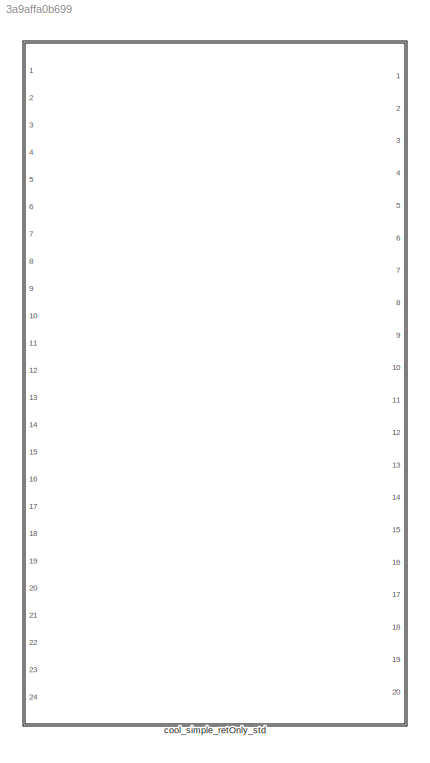
MODEL slx_3a9affa0b699
KIND library
CONFIG AbsTol = auto
CONFIG FixedStep = auto
CONFIG MaxStep = auto
CONFIG MinStep = auto
CONFIG RelTol = 1e-3
CONFIG SampleTimeConstraint = Unconstrained
CONFIG Solver = VariableStepAuto
CONFIG SolverMode = Auto
CONFIG SolverName = VariableStepAuto
CONFIG StartTime = 0.0
CONFIG StopTime = 10.0
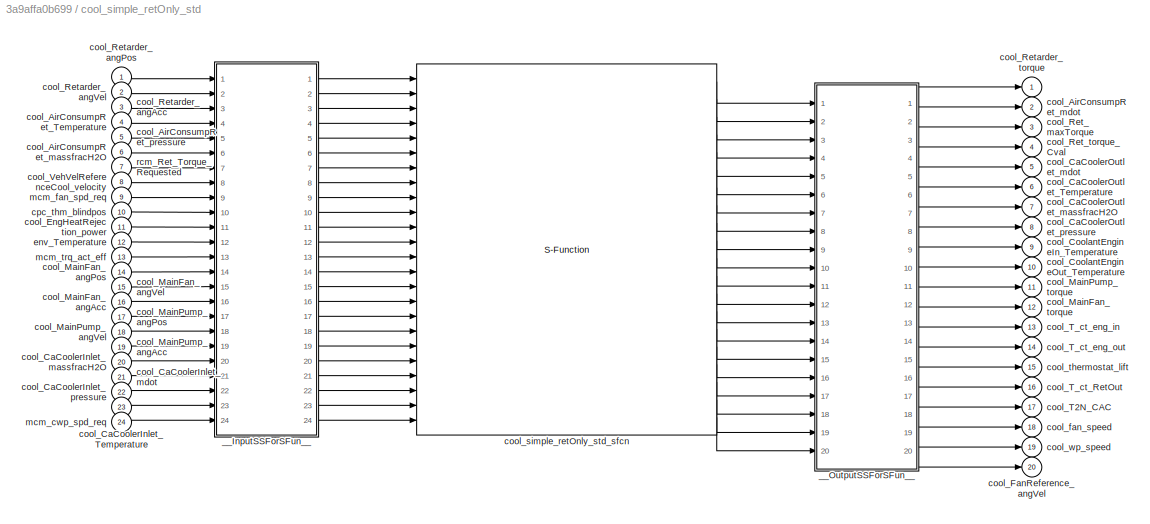
BLOCK [SubSystem] cool_simple_retOnly_std
  Ports = [24, 20]
  RequestExecContextInheritance = off
  Variant = off
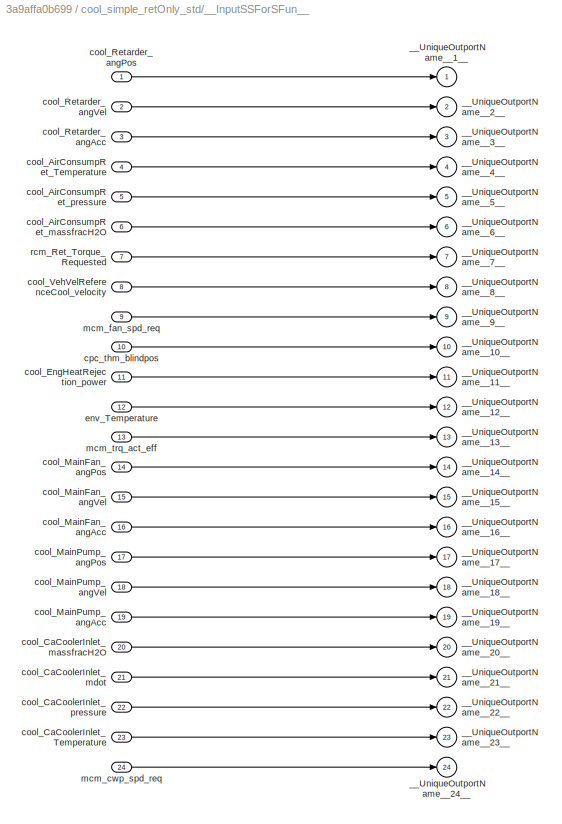
BLOCK [SubSystem] cool_simple_retOnly_std/__InputSSForSFun__
  PermitHierarchicalResolution = ExplicitOnly
  Ports = [24, 24]
  RequestExecContextInheritance = off
  Variant = off
BLOCK [Outport] cool_simple_retOnly_std/__InputSSForSFun__/__UniqueOutportName__10__
  IconDisplay = Port number
  Port = 10
BLOCK [Outport] cool_simple_retOnly_std/__InputSSForSFun__/__UniqueOutportName__11__
  IconDisplay = Port number
  Port = 11
BLOCK [Outport] cool_simple_retOnly_std/__InputSSForSFun__/__UniqueOutportName__12__
  IconDisplay = Port number
  Port = 12
BLOCK [Outport] cool_simple_retOnly_std/__InputSSForSFun__/__UniqueOutportName__13__
  IconDisplay = Port number
  Port = 13
BLOCK [Outport] cool_simple_retOnly_std/__InputSSForSFun__/__UniqueOutportName__14__
  IconDisplay = Port number
  Port = 14
BLOCK [Outport] cool_simple_retOnly_std/__InputSSForSFun__/__UniqueOutportName__15__
  IconDisplay = Port number
  Port = 15
BLOCK [Outport] cool_simple_retOnly_std/__InputSSForSFun__/__UniqueOutportName__16__
  IconDisplay = Port number
  Port = 16
BLOCK [Outport] cool_simple_retOnly_std/__InputSSForSFun__/__UniqueOutportName__17__
  IconDisplay = Port number
  Port = 17
BLOCK [Outport] cool_simple_retOnly_std/__InputSSForSFun__/__UniqueOutportName__18__
  IconDisplay = Port number
  Port = 18
BLOCK [Outport] cool_simple_retOnly_std/__InputSSForSFun__/__UniqueOutportName__19__
  IconDisplay = Port number
  Port = 19
BLOCK [Outport] cool_simple_retOnly_std/__InputSSForSFun__/__UniqueOutportName__1__
  IconDisplay = Port number
BLOCK [Outport] cool_simple_retOnly_std/__InputSSForSFun__/__UniqueOutportName__20__
  IconDisplay = Port number
  Port = 20
BLOCK [Outport] cool_simple_retOnly_std/__InputSSForSFun__/__UniqueOutportName__21__
  IconDisplay = Port number
  Port = 21
BLOCK [Outport] cool_simple_retOnly_std/__InputSSForSFun__/__UniqueOutportName__22__
  IconDisplay = Port number
  Port = 22
BLOCK [Outport] cool_simple_retOnly_std/__InputSSForSFun__/__UniqueOutportName__23__
  IconDisplay = Port number
  Port = 23
BLOCK [Outport] cool_simple_retOnly_std/__InputSSForSFun__/__UniqueOutportName__24__
  IconDisplay = Port number
  Port = 24
BLOCK [Outport] cool_simple_retOnly_std/__InputSSForSFun__/__UniqueOutportName__2__
  IconDisplay = Port number
  Port = 2
BLOCK [Outport] cool_simple_retOnly_std/__InputSSForSFun__/__UniqueOutportName__3__
  IconDisplay = Port number
  Port = 3
BLOCK [Outport] cool_simple_retOnly_std/__InputSSForSFun__/__UniqueOutportName__4__
  IconDisplay = Port number
  Port = 4
BLOCK [Outport] cool_simple_retOnly_std/__InputSSForSFun__/__UniqueOutportName__5__
  IconDisplay = Port number
  Port = 5
BLOCK [Outport] cool_simple_retOnly_std/__InputSSForSFun__/__UniqueOutportName__6__
  IconDisplay = Port number
  Port = 6
BLOCK [Outport] cool_simple_retOnly_std/__InputSSForSFun__/__UniqueOutportName__7__
  IconDisplay = Port number
  Port = 7
BLOCK [Outport] cool_simple_retOnly_std/__InputSSForSFun__/__UniqueOutportName__8__
  IconDisplay = Port number
  Port = 8
BLOCK [Outport] cool_simple_retOnly_std/__InputSSForSFun__/__UniqueOutportName__9__
  IconDisplay = Port number
  Port = 9
BLOCK [Inport] cool_simple_retOnly_std/__InputSSForSFun__/cool_AirConsumpRet_Temperature
  IconDisplay = Port number
  Port = 4
BLOCK [Inport] cool_simple_retOnly_std/__InputSSForSFun__/cool_AirConsumpRet_massfracH2O
  IconDisplay = Port number
  Port = 6
BLOCK [Inport] cool_simple_retOnly_std/__InputSSForSFun__/cool_AirConsumpRet_pressure
  IconDisplay = Port number
  Port = 5
BLOCK [Inport] cool_simple_retOnly_std/__InputSSForSFun__/cool_CaCoolerInlet_Temperature
  IconDisplay = Port number
  Port = 23
BLOCK [Inport] cool_simple_retOnly_std/__InputSSForSFun__/cool_CaCoolerInlet_massfracH2O
  IconDisplay = Port number
  Port = 20
BLOCK [Inport] cool_simple_retOnly_std/__InputSSForSFun__/cool_CaCoolerInlet_mdot
  IconDisplay = Port number
  Port = 21
BLOCK [Inport] cool_simple_retOnly_std/__InputSSForSFun__/cool_CaCoolerInlet_pressure
  IconDisplay = Port number
  Port = 22
BLOCK [Inport] cool_simple_retOnly_std/__InputSSForSFun__/cool_EngHeatRejection_power
  IconDisplay = Port number
  Port = 11
BLOCK [Inport] cool_simple_retOnly_std/__InputSSForSFun__/cool_MainFan_angAcc
  IconDisplay = Port number
  Port = 16
BLOCK [Inport] cool_simple_retOnly_std/__InputSSForSFun__/cool_MainFan_angPos
  IconDisplay = Port number
  Port = 14
BLOCK [Inport] cool_simple_retOnly_std/__InputSSForSFun__/cool_MainFan_angVel
  IconDisplay = Port number
  Port = 15
BLOCK [Inport] cool_simple_retOnly_std/__InputSSForSFun__/cool_MainPump_angAcc
  IconDisplay = Port number
  Port = 19
BLOCK [Inport] cool_simple_retOnly_std/__InputSSForSFun__/cool_MainPump_angPos
  IconDisplay = Port number
  Port = 17
BLOCK [Inport] cool_simple_retOnly_std/__InputSSForSFun__/cool_MainPump_angVel
  IconDisplay = Port number
  Port = 18
BLOCK [Inport] cool_simple_retOnly_std/__InputSSForSFun__/cool_Retarder_angAcc
  IconDisplay = Port number
  Port = 3
BLOCK [Inport] cool_simple_retOnly_std/__InputSSForSFun__/cool_Retarder_angPos
  IconDisplay = Port number
BLOCK [Inport] cool_simple_retOnly_std/__InputSSForSFun__/cool_Retarder_angVel
  IconDisplay = Port number
  Port = 2
BLOCK [Inport] cool_simple_retOnly_std/__InputSSForSFun__/cool_VehVelReferenceCool_velocity
  IconDisplay = Port number
  Port = 8
BLOCK [Inport] cool_simple_retOnly_std/__InputSSForSFun__/cpc_thm_blindpos
  IconDisplay = Port number
  Port = 10
BLOCK [Inport] cool_simple_retOnly_std/__InputSSForSFun__/env_Temperature
  IconDisplay = Port number
  Port = 12
BLOCK [Inport] cool_simple_retOnly_std/__InputSSForSFun__/mcm_cwp_spd_req
  IconDisplay = Port number
  Port = 24
BLOCK [Inport] cool_simple_retOnly_std/__InputSSForSFun__/mcm_fan_spd_req
  IconDisplay = Port number
  Port = 9
BLOCK [Inport] cool_simple_retOnly_std/__InputSSForSFun__/mcm_trq_act_eff
  IconDisplay = Port number
  Port = 13
BLOCK [Inport] cool_simple_retOnly_std/__InputSSForSFun__/rcm_Ret_Torque_Requested
  IconDisplay = Port number
  Port = 7
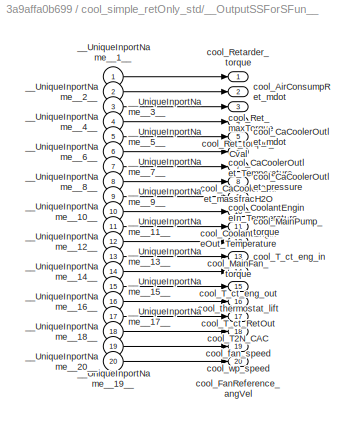
BLOCK [SubSystem] cool_simple_retOnly_std/__OutputSSForSFun__
  PermitHierarchicalResolution = ExplicitOnly
  Ports = [20, 20]
  RequestExecContextInheritance = off
  Variant = off
BLOCK [Inport] cool_simple_retOnly_std/__OutputSSForSFun__/__UniqueInportName__10__
  IconDisplay = Port number
  Port = 10
BLOCK [Inport] cool_simple_retOnly_std/__OutputSSForSFun__/__UniqueInportName__11__
  IconDisplay = Port number
  Port = 11
BLOCK [Inport] cool_simple_retOnly_std/__OutputSSForSFun__/__UniqueInportName__12__
  IconDisplay = Port number
  Port = 12
BLOCK [Inport] cool_simple_retOnly_std/__OutputSSForSFun__/__UniqueInportName__13__
  IconDisplay = Port number
  Port = 13
BLOCK [Inport] cool_simple_retOnly_std/__OutputSSForSFun__/__UniqueInportName__14__
  IconDisplay = Port number
  Port = 14
BLOCK [Inport] cool_simple_retOnly_std/__OutputSSForSFun__/__UniqueInportName__15__
  IconDisplay = Port number
  Port = 15
BLOCK [Inport] cool_simple_retOnly_std/__OutputSSForSFun__/__UniqueInportName__16__
  IconDisplay = Port number
  Port = 16
BLOCK [Inport] cool_simple_retOnly_std/__OutputSSForSFun__/__UniqueInportName__17__
  IconDisplay = Port number
  Port = 17
BLOCK [Inport] cool_simple_retOnly_std/__OutputSSForSFun__/__UniqueInportName__18__
  IconDisplay = Port number
  Port = 18
BLOCK [Inport] cool_simple_retOnly_std/__OutputSSForSFun__/__UniqueInportName__19__
  IconDisplay = Port number
  Port = 19
BLOCK [Inport] cool_simple_retOnly_std/__OutputSSForSFun__/__UniqueInportName__1__
  IconDisplay = Port number
BLOCK [Inport] cool_simple_retOnly_std/__OutputSSForSFun__/__UniqueInportName__20__
  IconDisplay = Port number
  Port = 20
BLOCK [Inport] cool_simple_retOnly_std/__OutputSSForSFun__/__UniqueInportName__2__
  IconDisplay = Port number
  Port = 2
BLOCK [Inport] cool_simple_retOnly_std/__OutputSSForSFun__/__UniqueInportName__3__
  IconDisplay = Port number
  Port = 3
BLOCK [Inport] cool_simple_retOnly_std/__OutputSSForSFun__/__UniqueInportName__4__
  IconDisplay = Port number
  Port = 4
BLOCK [Inport] cool_simple_retOnly_std/__OutputSSForSFun__/__UniqueInportName__5__
  IconDisplay = Port number
  Port = 5
BLOCK [Inport] cool_simple_retOnly_std/__OutputSSForSFun__/__UniqueInportName__6__
  IconDisplay = Port number
  Port = 6
BLOCK [Inport] cool_simple_retOnly_std/__OutputSSForSFun__/__UniqueInportName__7__
  IconDisplay = Port number
  Port = 7
BLOCK [Inport] cool_simple_retOnly_std/__OutputSSForSFun__/__UniqueInportName__8__
  IconDisplay = Port number
  Port = 8
BLOCK [Inport] cool_simple_retOnly_std/__OutputSSForSFun__/__UniqueInportName__9__
  IconDisplay = Port number
  Port = 9
BLOCK [Outport] cool_simple_retOnly_std/__OutputSSForSFun__/cool_AirConsumpRet_mdot
  IconDisplay = Port number
  Port = 2
BLOCK [Outport] cool_simple_retOnly_std/__OutputSSForSFun__/cool_CaCoolerOutlet_Temperature
  IconDisplay = Port number
  Port = 6
BLOCK [Outport] cool_simple_retOnly_std/__OutputSSForSFun__/cool_CaCoolerOutlet_massfracH2O
  IconDisplay = Port number
  Port = 7
BLOCK [Outport] cool_simple_retOnly_std/__OutputSSForSFun__/cool_CaCoolerOutlet_mdot
  IconDisplay = Port number
  Port = 5
BLOCK [Outport] cool_simple_retOnly_std/__OutputSSForSFun__/cool_CaCoolerOutlet_pressure
  IconDisplay = Port number
  Port = 8
BLOCK [Outport] cool_simple_retOnly_std/__OutputSSForSFun__/cool_CoolantEngineIn_Temperature
  IconDisplay = Port number
  Port = 9
BLOCK [Outport] cool_simple_retOnly_std/__OutputSSForSFun__/cool_CoolantEngineOut_Temperature
  IconDisplay = Port number
  Port = 10
BLOCK [Outport] cool_simple_retOnly_std/__OutputSSForSFun__/cool_FanReference_angVel
  IconDisplay = Port number
  Port = 20
BLOCK [Outport] cool_simple_retOnly_std/__OutputSSForSFun__/cool_MainFan_torque
  IconDisplay = Port number
  Port = 12
BLOCK [Outport] cool_simple_retOnly_std/__OutputSSForSFun__/cool_MainPump_torque
  IconDisplay = Port number
  Port = 11
BLOCK [Outport] cool_simple_retOnly_std/__OutputSSForSFun__/cool_Ret_maxTorque
  IconDisplay = Port number
  Port = 3
BLOCK [Outport] cool_simple_retOnly_std/__OutputSSForSFun__/cool_Ret_torque_Cval
  IconDisplay = Port number
  Port = 4
BLOCK [Outport] cool_simple_retOnly_std/__OutputSSForSFun__/cool_Retarder_torque
  IconDisplay = Port number
BLOCK [Outport] cool_simple_retOnly_std/__OutputSSForSFun__/cool_T2N_CAC
  IconDisplay = Port number
  Port = 17
BLOCK [Outport] cool_simple_retOnly_std/__OutputSSForSFun__/cool_T_ct_RetOut
  IconDisplay = Port number
  Port = 16
BLOCK [Outport] cool_simple_retOnly_std/__OutputSSForSFun__/cool_T_ct_eng_in
  IconDisplay = Port number
  Port = 13
BLOCK [Outport] cool_simple_retOnly_std/__OutputSSForSFun__/cool_T_ct_eng_out
  IconDisplay = Port number
  Port = 14
BLOCK [Outport] cool_simple_retOnly_std/__OutputSSForSFun__/cool_fan_speed
  IconDisplay = Port number
  Port = 18
BLOCK [Outport] cool_simple_retOnly_std/__OutputSSForSFun__/cool_thermostat_lift
  IconDisplay = Port number
  Port = 15
BLOCK [Outport] cool_simple_retOnly_std/__OutputSSForSFun__/cool_wp_speed
  IconDisplay = Port number
  Port = 19
BLOCK [Inport] cool_simple_retOnly_std/cool_AirConsumpRet_Temperature
  IconDisplay = Port number
  Port = 4
BLOCK [Inport] cool_simple_retOnly_std/cool_AirConsumpRet_massfracH2O
  IconDisplay = Port number
  Port = 6
BLOCK [Outport] cool_simple_retOnly_std/cool_AirConsumpRet_mdot
  IconDisplay = Port number
  Port = 2
BLOCK [Inport] cool_simple_retOnly_std/cool_AirConsumpRet_pressure
  IconDisplay = Port number
  Port = 5
BLOCK [Inport] cool_simple_retOnly_std/cool_CaCoolerInlet_Temperature
  IconDisplay = Port number
  Port = 23
BLOCK [Inport] cool_simple_retOnly_std/cool_CaCoolerInlet_massfracH2O
  IconDisplay = Port number
  Port = 20
BLOCK [Inport] cool_simple_retOnly_std/cool_CaCoolerInlet_mdot
  IconDisplay = Port number
  Port = 21
BLOCK [Inport] cool_simple_retOnly_std/cool_CaCoolerInlet_pressure
  IconDisplay = Port number
  Port = 22
BLOCK [Outport] cool_simple_retOnly_std/cool_CaCoolerOutlet_Temperature
  IconDisplay = Port number
  Port = 6
BLOCK [Outport] cool_simple_retOnly_std/cool_CaCoolerOutlet_massfracH2O
  IconDisplay = Port number
  Port = 7
BLOCK [Outport] cool_simple_retOnly_std/cool_CaCoolerOutlet_mdot
  IconDisplay = Port number
  Port = 5
BLOCK [Outport] cool_simple_retOnly_std/cool_CaCoolerOutlet_pressure
  IconDisplay = Port number
  Port = 8
BLOCK [Outport] cool_simple_retOnly_std/cool_CoolantEngineIn_Temperature
  IconDisplay = Port number
  Port = 9
BLOCK [Outport] cool_simple_retOnly_std/cool_CoolantEngineOut_Temperature
  IconDisplay = Port number
  Port = 10
BLOCK [Inport] cool_simple_retOnly_std/cool_EngHeatRejection_power
  IconDisplay = Port number
  Port = 11
BLOCK [Outport] cool_simple_retOnly_std/cool_FanReference_angVel
  IconDisplay = Port number
  Port = 20
BLOCK [Inport] cool_simple_retOnly_std/cool_MainFan_angAcc
  IconDisplay = Port number
  Port = 16
BLOCK [Inport] cool_simple_retOnly_std/cool_MainFan_angPos
  IconDisplay = Port number
  Port = 14
BLOCK [Inport] cool_simple_retOnly_std/cool_MainFan_angVel
  IconDisplay = Port number
  Port = 15
BLOCK [Outport] cool_simple_retOnly_std/cool_MainFan_torque
  IconDisplay = Port number
  Port = 12
BLOCK [Inport] cool_simple_retOnly_std/cool_MainPump_angAcc
  IconDisplay = Port number
  Port = 19
BLOCK [Inport] cool_simple_retOnly_std/cool_MainPump_angPos
  IconDisplay = Port number
  Port = 17
BLOCK [Inport] cool_simple_retOnly_std/cool_MainPump_angVel
  IconDisplay = Port number
  Port = 18
BLOCK [Outport] cool_simple_retOnly_std/cool_MainPump_torque
  IconDisplay = Port number
  Port = 11
BLOCK [Outport] cool_simple_retOnly_std/cool_Ret_maxTorque
  IconDisplay = Port number
  Port = 3
BLOCK [Outport] cool_simple_retOnly_std/cool_Ret_torque_Cval
  IconDisplay = Port number
  Port = 4
BLOCK [Inport] cool_simple_retOnly_std/cool_Retarder_angAcc
  IconDisplay = Port number
  Port = 3
BLOCK [Inport] cool_simple_retOnly_std/cool_Retarder_angPos
  IconDisplay = Port number
BLOCK [Inport] cool_simple_retOnly_std/cool_Retarder_angVel
  IconDisplay = Port number
  Port = 2
BLOCK [Outport] cool_simple_retOnly_std/cool_Retarder_torque
  IconDisplay = Port number
BLOCK [Outport] cool_simple_retOnly_std/cool_T2N_CAC
  IconDisplay = Port number
  Port = 17
BLOCK [Outport] cool_simple_retOnly_std/cool_T_ct_RetOut
  IconDisplay = Port number
  Port = 16
BLOCK [Outport] cool_simple_retOnly_std/cool_T_ct_eng_in
  IconDisplay = Port number
  Port = 13
BLOCK [Outport] cool_simple_retOnly_std/cool_T_ct_eng_out
  IconDisplay = Port number
  Port = 14
BLOCK [Inport] cool_simple_retOnly_std/cool_VehVelReferenceCool_velocity
  IconDisplay = Port number
  Port = 8
BLOCK [Outport] cool_simple_retOnly_std/cool_fan_speed
  IconDisplay = Port number
  Port = 18
BLOCK [S-Function] cool_simple_retOnly_std/cool_simple_retOnly_std_sfcn
  CopyFcn = if ~strcmp(get_param(gcb,'Linkstatus'),'none') && ...\n~strcmp(get_param(gcb,'Linkstatus'),'implicit')      \n  set_param(gcb,'LinkStatus','none');                \nend
  EnableBusSupport = off
  FunctionName = cool_simple_retOnly_std0_sf
  Parameters = sfcnParam1, sfcnParam2, sfcnParam3, sfcnParam4, sfcnParam5, sfcnParam6, sfcnParam7, sfcnParam8, sfcnParam9, sfcnParam10, sfcnParam11, sfcnParam12, sfcnParam13
  Ports = [24, 20]
  SFunctionDeploymentMode = off
BLOCK [Outport] cool_simple_retOnly_std/cool_thermostat_lift
  IconDisplay = Port number
  Port = 15
BLOCK [Outport] cool_simple_retOnly_std/cool_wp_speed
  IconDisplay = Port number
  Port = 19
BLOCK [Inport] cool_simple_retOnly_std/cpc_thm_blindpos
  IconDisplay = Port number
  Port = 10
BLOCK [Inport] cool_simple_retOnly_std/env_Temperature
  IconDisplay = Port number
  Port = 12
BLOCK [Inport] cool_simple_retOnly_std/mcm_cwp_spd_req
  IconDisplay = Port number
  Port = 24
BLOCK [Inport] cool_simple_retOnly_std/mcm_fan_spd_req
  IconDisplay = Port number
  Port = 9
BLOCK [Inport] cool_simple_retOnly_std/mcm_trq_act_eff
  IconDisplay = Port number
  Port = 13
BLOCK [Inport] cool_simple_retOnly_std/rcm_Ret_Torque_Requested
  IconDisplay = Port number
  Port = 7
LINE cool_simple_retOnly_std/__InputSSForSFun__/cool_AirConsumpRet_Temperature:1 -> cool_simple_retOnly_std/__InputSSForSFun__/__UniqueOutportName__4__:1
LINE cool_simple_retOnly_std/__InputSSForSFun__/cool_AirConsumpRet_massfracH2O:1 -> cool_simple_retOnly_std/__InputSSForSFun__/__UniqueOutportName__6__:1
LINE cool_simple_retOnly_std/__InputSSForSFun__/cool_AirConsumpRet_pressure:1 -> cool_simple_retOnly_std/__InputSSForSFun__/__UniqueOutportName__5__:1
LINE cool_simple_retOnly_std/__InputSSForSFun__/cool_CaCoolerInlet_Temperature:1 -> cool_simple_retOnly_std/__InputSSForSFun__/__UniqueOutportName__23__:1
LINE cool_simple_retOnly_std/__InputSSForSFun__/cool_CaCoolerInlet_massfracH2O:1 -> cool_simple_retOnly_std/__InputSSForSFun__/__UniqueOutportName__20__:1
LINE cool_simple_retOnly_std/__InputSSForSFun__/cool_CaCoolerInlet_mdot:1 -> cool_simple_retOnly_std/__InputSSForSFun__/__UniqueOutportName__21__:1
LINE cool_simple_retOnly_std/__InputSSForSFun__/cool_CaCoolerInlet_pressure:1 -> cool_simple_retOnly_std/__InputSSForSFun__/__UniqueOutportName__22__:1
LINE cool_simple_retOnly_std/__InputSSForSFun__/cool_EngHeatRejection_power:1 -> cool_simple_retOnly_std/__InputSSForSFun__/__UniqueOutportName__11__:1
LINE cool_simple_retOnly_std/__InputSSForSFun__/cool_MainFan_angAcc:1 -> cool_simple_retOnly_std/__InputSSForSFun__/__UniqueOutportName__16__:1
LINE cool_simple_retOnly_std/__InputSSForSFun__/cool_MainFan_angPos:1 -> cool_simple_retOnly_std/__InputSSForSFun__/__UniqueOutportName__14__:1
LINE cool_simple_retOnly_std/__InputSSForSFun__/cool_MainFan_angVel:1 -> cool_simple_retOnly_std/__InputSSForSFun__/__UniqueOutportName__15__:1
LINE cool_simple_retOnly_std/__InputSSForSFun__/cool_MainPump_angAcc:1 -> cool_simple_retOnly_std/__InputSSForSFun__/__UniqueOutportName__19__:1
LINE cool_simple_retOnly_std/__InputSSForSFun__/cool_MainPump_angPos:1 -> cool_simple_retOnly_std/__InputSSForSFun__/__UniqueOutportName__17__:1
LINE cool_simple_retOnly_std/__InputSSForSFun__/cool_MainPump_angVel:1 -> cool_simple_retOnly_std/__InputSSForSFun__/__UniqueOutportName__18__:1
LINE cool_simple_retOnly_std/__InputSSForSFun__/cool_Retarder_angAcc:1 -> cool_simple_retOnly_std/__InputSSForSFun__/__UniqueOutportName__3__:1
LINE cool_simple_retOnly_std/__InputSSForSFun__/cool_Retarder_angPos:1 -> cool_simple_retOnly_std/__InputSSForSFun__/__UniqueOutportName__1__:1
LINE cool_simple_retOnly_std/__InputSSForSFun__/cool_Retarder_angVel:1 -> cool_simple_retOnly_std/__InputSSForSFun__/__UniqueOutportName__2__:1
LINE cool_simple_retOnly_std/__InputSSForSFun__/cool_VehVelReferenceCool_velocity:1 -> cool_simple_retOnly_std/__InputSSForSFun__/__UniqueOutportName__8__:1
LINE cool_simple_retOnly_std/__InputSSForSFun__/cpc_thm_blindpos:1 -> cool_simple_retOnly_std/__InputSSForSFun__/__UniqueOutportName__10__:1
LINE cool_simple_retOnly_std/__InputSSForSFun__/env_Temperature:1 -> cool_simple_retOnly_std/__InputSSForSFun__/__UniqueOutportName__12__:1
LINE cool_simple_retOnly_std/__InputSSForSFun__/mcm_cwp_spd_req:1 -> cool_simple_retOnly_std/__InputSSForSFun__/__UniqueOutportName__24__:1
LINE cool_simple_retOnly_std/__InputSSForSFun__/mcm_fan_spd_req:1 -> cool_simple_retOnly_std/__InputSSForSFun__/__UniqueOutportName__9__:1
LINE cool_simple_retOnly_std/__InputSSForSFun__/mcm_trq_act_eff:1 -> cool_simple_retOnly_std/__InputSSForSFun__/__UniqueOutportName__13__:1
LINE cool_simple_retOnly_std/__InputSSForSFun__/rcm_Ret_Torque_Requested:1 -> cool_simple_retOnly_std/__InputSSForSFun__/__UniqueOutportName__7__:1
LINE cool_simple_retOnly_std/__InputSSForSFun__:1 -> cool_simple_retOnly_std/cool_simple_retOnly_std_sfcn:1
LINE cool_simple_retOnly_std/__InputSSForSFun__:10 -> cool_simple_retOnly_std/cool_simple_retOnly_std_sfcn:10
LINE cool_simple_retOnly_std/__InputSSForSFun__:11 -> cool_simple_retOnly_std/cool_simple_retOnly_std_sfcn:11
LINE cool_simple_retOnly_std/__InputSSForSFun__:12 -> cool_simple_retOnly_std/cool_simple_retOnly_std_sfcn:12
LINE cool_simple_retOnly_std/__InputSSForSFun__:13 -> cool_simple_retOnly_std/cool_simple_retOnly_std_sfcn:13
LINE cool_simple_retOnly_std/__InputSSForSFun__:14 -> cool_simple_retOnly_std/cool_simple_retOnly_std_sfcn:14
LINE cool_simple_retOnly_std/__InputSSForSFun__:15 -> cool_simple_retOnly_std/cool_simple_retOnly_std_sfcn:15
LINE cool_simple_retOnly_std/__InputSSForSFun__:16 -> cool_simple_retOnly_std/cool_simple_retOnly_std_sfcn:16
LINE cool_simple_retOnly_std/__InputSSForSFun__:17 -> cool_simple_retOnly_std/cool_simple_retOnly_std_sfcn:17
LINE cool_simple_retOnly_std/__InputSSForSFun__:18 -> cool_simple_retOnly_std/cool_simple_retOnly_std_sfcn:18
LINE cool_simple_retOnly_std/__InputSSForSFun__:19 -> cool_simple_retOnly_std/cool_simple_retOnly_std_sfcn:19
LINE cool_simple_retOnly_std/__InputSSForSFun__:2 -> cool_simple_retOnly_std/cool_simple_retOnly_std_sfcn:2
LINE cool_simple_retOnly_std/__InputSSForSFun__:20 -> cool_simple_retOnly_std/cool_simple_retOnly_std_sfcn:20
LINE cool_simple_retOnly_std/__InputSSForSFun__:21 -> cool_simple_retOnly_std/cool_simple_retOnly_std_sfcn:21
LINE cool_simple_retOnly_std/__InputSSForSFun__:22 -> cool_simple_retOnly_std/cool_simple_retOnly_std_sfcn:22
LINE cool_simple_retOnly_std/__InputSSForSFun__:23 -> cool_simple_retOnly_std/cool_simple_retOnly_std_sfcn:23
LINE cool_simple_retOnly_std/__InputSSForSFun__:24 -> cool_simple_retOnly_std/cool_simple_retOnly_std_sfcn:24
LINE cool_simple_retOnly_std/__InputSSForSFun__:3 -> cool_simple_retOnly_std/cool_simple_retOnly_std_sfcn:3
LINE cool_simple_retOnly_std/__InputSSForSFun__:4 -> cool_simple_retOnly_std/cool_simple_retOnly_std_sfcn:4
LINE cool_simple_retOnly_std/__InputSSForSFun__:5 -> cool_simple_retOnly_std/cool_simple_retOnly_std_sfcn:5
LINE cool_simple_retOnly_std/__InputSSForSFun__:6 -> cool_simple_retOnly_std/cool_simple_retOnly_std_sfcn:6
LINE cool_simple_retOnly_std/__InputSSForSFun__:7 -> cool_simple_retOnly_std/cool_simple_retOnly_std_sfcn:7
LINE cool_simple_retOnly_std/__InputSSForSFun__:8 -> cool_simple_retOnly_std/cool_simple_retOnly_std_sfcn:8
LINE cool_simple_retOnly_std/__InputSSForSFun__:9 -> cool_simple_retOnly_std/cool_simple_retOnly_std_sfcn:9
LINE cool_simple_retOnly_std/__OutputSSForSFun__/__UniqueInportName__10__:1 -> cool_simple_retOnly_std/__OutputSSForSFun__/cool_CoolantEngineOut_Temperature:1
LINE cool_simple_retOnly_std/__OutputSSForSFun__/__UniqueInportName__11__:1 -> cool_simple_retOnly_std/__OutputSSForSFun__/cool_MainPump_torque:1
LINE cool_simple_retOnly_std/__OutputSSForSFun__/__UniqueInportName__12__:1 -> cool_simple_retOnly_std/__OutputSSForSFun__/cool_MainFan_torque:1
LINE cool_simple_retOnly_std/__OutputSSForSFun__/__UniqueInportName__13__:1 -> cool_simple_retOnly_std/__OutputSSForSFun__/cool_T_ct_eng_in:1
LINE cool_simple_retOnly_std/__OutputSSForSFun__/__UniqueInportName__14__:1 -> cool_simple_retOnly_std/__OutputSSForSFun__/cool_T_ct_eng_out:1
LINE cool_simple_retOnly_std/__OutputSSForSFun__/__UniqueInportName__15__:1 -> cool_simple_retOnly_std/__OutputSSForSFun__/cool_thermostat_lift:1
LINE cool_simple_retOnly_std/__OutputSSForSFun__/__UniqueInportName__16__:1 -> cool_simple_retOnly_std/__OutputSSForSFun__/cool_T_ct_RetOut:1
LINE cool_simple_retOnly_std/__OutputSSForSFun__/__UniqueInportName__17__:1 -> cool_simple_retOnly_std/__OutputSSForSFun__/cool_T2N_CAC:1
LINE cool_simple_retOnly_std/__OutputSSForSFun__/__UniqueInportName__18__:1 -> cool_simple_retOnly_std/__OutputSSForSFun__/cool_fan_speed:1
LINE cool_simple_retOnly_std/__OutputSSForSFun__/__UniqueInportName__19__:1 -> cool_simple_retOnly_std/__OutputSSForSFun__/cool_wp_speed:1
LINE cool_simple_retOnly_std/__OutputSSForSFun__/__UniqueInportName__1__:1 -> cool_simple_retOnly_std/__OutputSSForSFun__/cool_Retarder_torque:1
LINE cool_simple_retOnly_std/__OutputSSForSFun__/__UniqueInportName__20__:1 -> cool_simple_retOnly_std/__OutputSSForSFun__/cool_FanReference_angVel:1
LINE cool_simple_retOnly_std/__OutputSSForSFun__/__UniqueInportName__2__:1 -> cool_simple_retOnly_std/__OutputSSForSFun__/cool_AirConsumpRet_mdot:1
LINE cool_simple_retOnly_std/__OutputSSForSFun__/__UniqueInportName__3__:1 -> cool_simple_retOnly_std/__OutputSSForSFun__/cool_Ret_maxTorque:1
LINE cool_simple_retOnly_std/__OutputSSForSFun__/__UniqueInportName__4__:1 -> cool_simple_retOnly_std/__OutputSSForSFun__/cool_Ret_torque_Cval:1
LINE cool_simple_retOnly_std/__OutputSSForSFun__/__UniqueInportName__5__:1 -> cool_simple_retOnly_std/__OutputSSForSFun__/cool_CaCoolerOutlet_mdot:1
LINE cool_simple_retOnly_std/__OutputSSForSFun__/__UniqueInportName__6__:1 -> cool_simple_retOnly_std/__OutputSSForSFun__/cool_CaCoolerOutlet_Temperature:1
LINE cool_simple_retOnly_std/__OutputSSForSFun__/__UniqueInportName__7__:1 -> cool_simple_retOnly_std/__OutputSSForSFun__/cool_CaCoolerOutlet_massfracH2O:1
LINE cool_simple_retOnly_std/__OutputSSForSFun__/__UniqueInportName__8__:1 -> cool_simple_retOnly_std/__OutputSSForSFun__/cool_CaCoolerOutlet_pressure:1
LINE cool_simple_retOnly_std/__OutputSSForSFun__/__UniqueInportName__9__:1 -> cool_simple_retOnly_std/__OutputSSForSFun__/cool_CoolantEngineIn_Temperature:1
LINE cool_simple_retOnly_std/__OutputSSForSFun__:1 -> cool_simple_retOnly_std/cool_Retarder_torque:1
LINE cool_simple_retOnly_std/__OutputSSForSFun__:10 -> cool_simple_retOnly_std/cool_CoolantEngineOut_Temperature:1
LINE cool_simple_retOnly_std/__OutputSSForSFun__:11 -> cool_simple_retOnly_std/cool_MainPump_torque:1
LINE cool_simple_retOnly_std/__OutputSSForSFun__:12 -> cool_simple_retOnly_std/cool_MainFan_torque:1
LINE cool_simple_retOnly_std/__OutputSSForSFun__:13 -> cool_simple_retOnly_std/cool_T_ct_eng_in:1
LINE cool_simple_retOnly_std/__OutputSSForSFun__:14 -> cool_simple_retOnly_std/cool_T_ct_eng_out:1
LINE cool_simple_retOnly_std/__OutputSSForSFun__:15 -> cool_simple_retOnly_std/cool_thermostat_lift:1
LINE cool_simple_retOnly_std/__OutputSSForSFun__:16 -> cool_simple_retOnly_std/cool_T_ct_RetOut:1
LINE cool_simple_retOnly_std/__OutputSSForSFun__:17 -> cool_simple_retOnly_std/cool_T2N_CAC:1
LINE cool_simple_retOnly_std/__OutputSSForSFun__:18 -> cool_simple_retOnly_std/cool_fan_speed:1
LINE cool_simple_retOnly_std/__OutputSSForSFun__:19 -> cool_simple_retOnly_std/cool_wp_speed:1
LINE cool_simple_retOnly_std/__OutputSSForSFun__:2 -> cool_simple_retOnly_std/cool_AirConsumpRet_mdot:1
LINE cool_simple_retOnly_std/__OutputSSForSFun__:20 -> cool_simple_retOnly_std/cool_FanReference_angVel:1
LINE cool_simple_retOnly_std/__OutputSSForSFun__:3 -> cool_simple_retOnly_std/cool_Ret_maxTorque:1
LINE cool_simple_retOnly_std/__OutputSSForSFun__:4 -> cool_simple_retOnly_std/cool_Ret_torque_Cval:1
LINE cool_simple_retOnly_std/__OutputSSForSFun__:5 -> cool_simple_retOnly_std/cool_CaCoolerOutlet_mdot:1
LINE cool_simple_retOnly_std/__OutputSSForSFun__:6 -> cool_simple_retOnly_std/cool_CaCoolerOutlet_Temperature:1
LINE cool_simple_retOnly_std/__OutputSSForSFun__:7 -> cool_simple_retOnly_std/cool_CaCoolerOutlet_massfracH2O:1
LINE cool_simple_retOnly_std/__OutputSSForSFun__:8 -> cool_simple_retOnly_std/cool_CaCoolerOutlet_pressure:1
LINE cool_simple_retOnly_std/__OutputSSForSFun__:9 -> cool_simple_retOnly_std/cool_CoolantEngineIn_Temperature:1
LINE cool_simple_retOnly_std/cool_AirConsumpRet_Temperature:1 -> cool_simple_retOnly_std/__InputSSForSFun__:4
LINE cool_simple_retOnly_std/cool_AirConsumpRet_massfracH2O:1 -> cool_simple_retOnly_std/__InputSSForSFun__:6
LINE cool_simple_retOnly_std/cool_AirConsumpRet_pressure:1 -> cool_simple_retOnly_std/__InputSSForSFun__:5
LINE cool_simple_retOnly_std/cool_CaCoolerInlet_Temperature:1 -> cool_simple_retOnly_std/__InputSSForSFun__:23
LINE cool_simple_retOnly_std/cool_CaCoolerInlet_massfracH2O:1 -> cool_simple_retOnly_std/__InputSSForSFun__:20
LINE cool_simple_retOnly_std/cool_CaCoolerInlet_mdot:1 -> cool_simple_retOnly_std/__InputSSForSFun__:21
LINE cool_simple_retOnly_std/cool_CaCoolerInlet_pressure:1 -> cool_simple_retOnly_std/__InputSSForSFun__:22
LINE cool_simple_retOnly_std/cool_EngHeatRejection_power:1 -> cool_simple_retOnly_std/__InputSSForSFun__:11
LINE cool_simple_retOnly_std/cool_MainFan_angAcc:1 -> cool_simple_retOnly_std/__InputSSForSFun__:16
LINE cool_simple_retOnly_std/cool_MainFan_angPos:1 -> cool_simple_retOnly_std/__InputSSForSFun__:14
LINE cool_simple_retOnly_std/cool_MainFan_angVel:1 -> cool_simple_retOnly_std/__InputSSForSFun__:15
LINE cool_simple_retOnly_std/cool_MainPump_angAcc:1 -> cool_simple_retOnly_std/__InputSSForSFun__:19
LINE cool_simple_retOnly_std/cool_MainPump_angPos:1 -> cool_simple_retOnly_std/__InputSSForSFun__:17
LINE cool_simple_retOnly_std/cool_MainPump_angVel:1 -> cool_simple_retOnly_std/__InputSSForSFun__:18
LINE cool_simple_retOnly_std/cool_Retarder_angAcc:1 -> cool_simple_retOnly_std/__InputSSForSFun__:3
LINE cool_simple_retOnly_std/cool_Retarder_angPos:1 -> cool_simple_retOnly_std/__InputSSForSFun__:1
LINE cool_simple_retOnly_std/cool_Retarder_angVel:1 -> cool_simple_retOnly_std/__InputSSForSFun__:2
LINE cool_simple_retOnly_std/cool_VehVelReferenceCool_velocity:1 -> cool_simple_retOnly_std/__InputSSForSFun__:8
LINE cool_simple_retOnly_std/cool_simple_retOnly_std_sfcn:1 -> cool_simple_retOnly_std/__OutputSSForSFun__:1
LINE cool_simple_retOnly_std/cool_simple_retOnly_std_sfcn:10 -> cool_simple_retOnly_std/__OutputSSForSFun__:10
LINE cool_simple_retOnly_std/cool_simple_retOnly_std_sfcn:11 -> cool_simple_retOnly_std/__OutputSSForSFun__:11
LINE cool_simple_retOnly_std/cool_simple_retOnly_std_sfcn:12 -> cool_simple_retOnly_std/__OutputSSForSFun__:12
LINE cool_simple_retOnly_std/cool_simple_retOnly_std_sfcn:13 -> cool_simple_retOnly_std/__OutputSSForSFun__:13
LINE cool_simple_retOnly_std/cool_simple_retOnly_std_sfcn:14 -> cool_simple_retOnly_std/__OutputSSForSFun__:14
LINE cool_simple_retOnly_std/cool_simple_retOnly_std_sfcn:15 -> cool_simple_retOnly_std/__OutputSSForSFun__:15
LINE cool_simple_retOnly_std/cool_simple_retOnly_std_sfcn:16 -> cool_simple_retOnly_std/__OutputSSForSFun__:16
LINE cool_simple_retOnly_std/cool_simple_retOnly_std_sfcn:17 -> cool_simple_retOnly_std/__OutputSSForSFun__:17
LINE cool_simple_retOnly_std/cool_simple_retOnly_std_sfcn:18 -> cool_simple_retOnly_std/__OutputSSForSFun__:18
LINE cool_simple_retOnly_std/cool_simple_retOnly_std_sfcn:19 -> cool_simple_retOnly_std/__OutputSSForSFun__:19
LINE cool_simple_retOnly_std/cool_simple_retOnly_std_sfcn:2 -> cool_simple_retOnly_std/__OutputSSForSFun__:2
LINE cool_simple_retOnly_std/cool_simple_retOnly_std_sfcn:20 -> cool_simple_retOnly_std/__OutputSSForSFun__:20
LINE cool_simple_retOnly_std/cool_simple_retOnly_std_sfcn:3 -> cool_simple_retOnly_std/__OutputSSForSFun__:3
LINE cool_simple_retOnly_std/cool_simple_retOnly_std_sfcn:4 -> cool_simple_retOnly_std/__OutputSSForSFun__:4
LINE cool_simple_retOnly_std/cool_simple_retOnly_std_sfcn:5 -> cool_simple_retOnly_std/__OutputSSForSFun__:5
LINE cool_simple_retOnly_std/cool_simple_retOnly_std_sfcn:6 -> cool_simple_retOnly_std/__OutputSSForSFun__:6
LINE cool_simple_retOnly_std/cool_simple_retOnly_std_sfcn:7 -> cool_simple_retOnly_std/__OutputSSForSFun__:7
LINE cool_simple_retOnly_std/cool_simple_retOnly_std_sfcn:8 -> cool_simple_retOnly_std/__OutputSSForSFun__:8
LINE cool_simple_retOnly_std/cool_simple_retOnly_std_sfcn:9 -> cool_simple_retOnly_std/__OutputSSForSFun__:9
LINE cool_simple_retOnly_std/cpc_thm_blindpos:1 -> cool_simple_retOnly_std/__InputSSForSFun__:10
LINE cool_simple_retOnly_std/env_Temperature:1 -> cool_simple_retOnly_std/__InputSSForSFun__:12
LINE cool_simple_retOnly_std/mcm_cwp_spd_req:1 -> cool_simple_retOnly_std/__InputSSForSFun__:24
LINE cool_simple_retOnly_std/mcm_fan_spd_req:1 -> cool_simple_retOnly_std/__InputSSForSFun__:9
LINE cool_simple_retOnly_std/mcm_trq_act_eff:1 -> cool_simple_retOnly_std/__InputSSForSFun__:13
LINE cool_simple_retOnly_std/rcm_Ret_Torque_Requested:1 -> cool_simple_retOnly_std/__InputSSForSFun__:7
